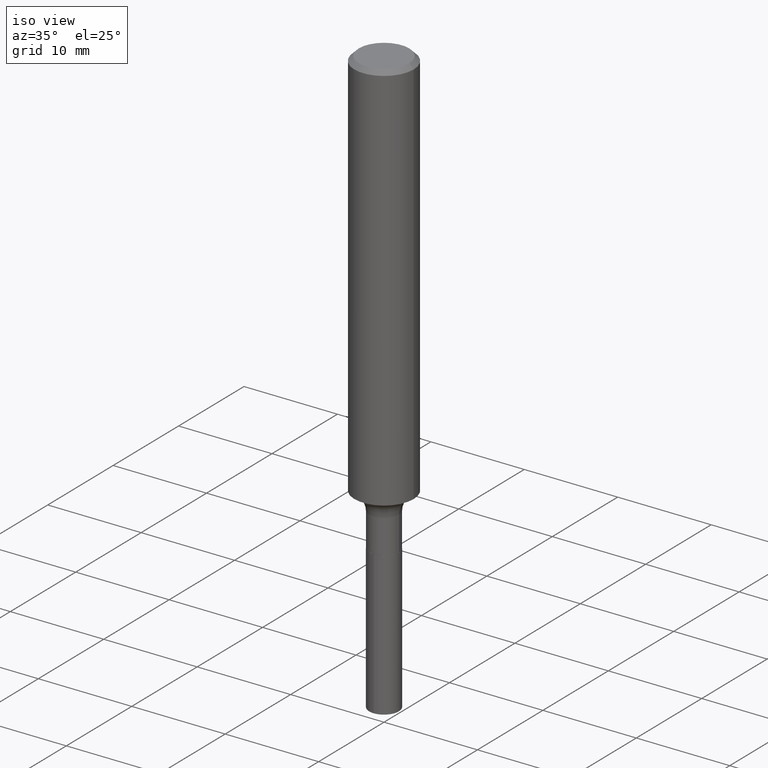
[diagram: clean part render]
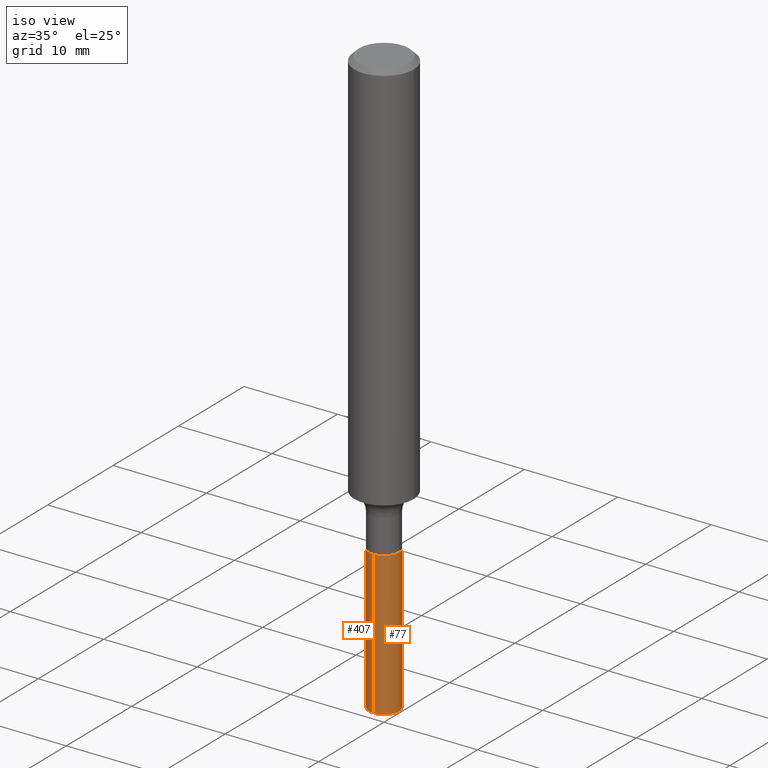
[diagram: same view with one multi-face feature highlighted, each face labeled with its STEP entity id]
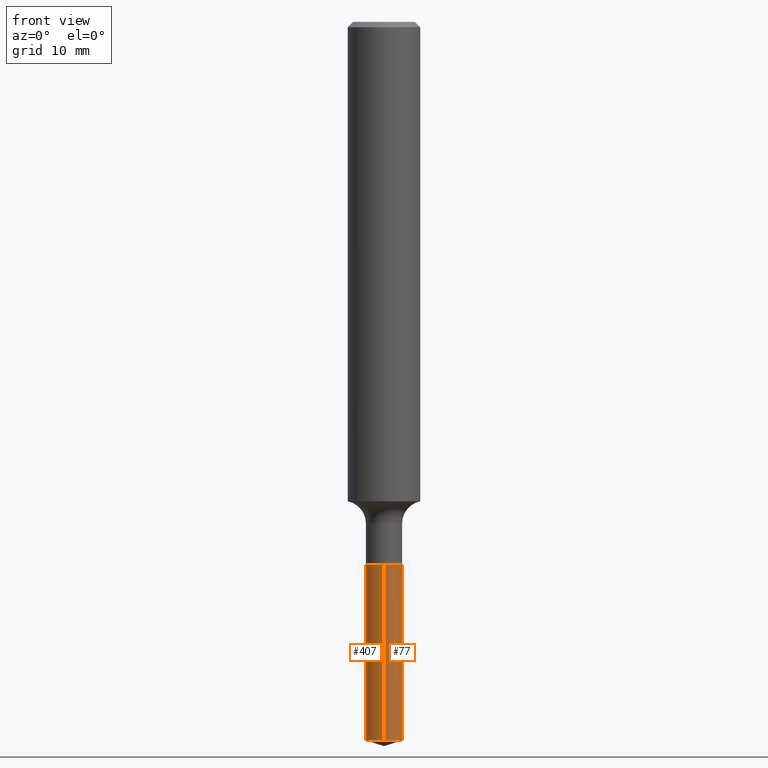
[diagram: same view with one multi-face feature highlighted, each face labeled with its STEP entity id]
A machine part, iso view. The highlighted faces form ONE feature: a constant-radius fillet chain: 2 tangent blend faces with common blend radius 1.5875 mm. The faces share edges in the B-rep.
A second angle (front view) of the same feature is appended — it is thin or edge-on in the first view.
Their STEP definitions:
[1] entity #407 (Cylinder):
#3 = DIRECTION ( 'NONE',  ( -2.446094705567647520E-29, 3.490585015303409213E-15, 1.000000000000000000 ) ) ;
#6 = AXIS2_PLACEMENT_3D ( 'NONE', #194, #340, #35 ) ;
#35 = DIRECTION ( 'NONE',  ( -6.982962677686265922E-15, -1.000000000000000000, 0.000000000000000000 ) ) ;
#49 = VERTEX_POINT ( 'NONE', #113 ) ;
#113 = CARTESIAN_POINT ( 'NONE',  ( -4.364351673553457676E-16, -0.06250000000000655032, -1.874999999999999778 ) ) ;
#141 = VECTOR ( 'NONE', #255, 39.37007874015748143 ) ;
#142 = DIRECTION ( 'NONE',  ( -2.446094705567647520E-29, 3.490585015303409213E-15, 1.000000000000000000 ) ) ;
#166 = ORIENTED_EDGE ( 'NONE', *, *, #389, .T. ) ;
#176 = CARTESIAN_POINT ( 'NONE',  ( 4.440892098501083701E-16, 0.06249999999999344968, -1.875000000000000444 ) ) ;
#181 = VERTEX_POINT ( 'NONE', #273 ) ;
#182 = DIRECTION ( 'NONE',  ( -2.446094705567647800E-29, 3.490585015303409213E-15, 1.000000000000000000 ) ) ;
#187 = DIRECTION ( 'NONE',  ( -6.982962677686265922E-15, -1.000000000000000000, 4.370956789862821150E-15 ) ) ;
#190 = EDGE_LOOP ( 'NONE', ( #463, #166, #199, #392 ) ) ;
#194 = CARTESIAN_POINT ( 'NONE',  ( 6.065860033942612795E-29, -8.659357068157762178E-15, -2.480293825695063958 ) ) ;
#199 = ORIENTED_EDGE ( 'NONE', *, *, #491, .T. ) ;
#223 = CARTESIAN_POINT ( 'NONE',  ( 4.440892098501233585E-16, 0.06249999999999345662, -1.875000000000000444 ) ) ;
#226 = CIRCLE ( 'NONE', #6, 0.06250000000000000000 ) ;
#247 = VERTEX_POINT ( 'NONE', #429 ) ;
#255 = DIRECTION ( 'NONE',  ( -2.446094705567647800E-29, 3.490585015303409213E-15, 1.000000000000000000 ) ) ;
#273 = CARTESIAN_POINT ( 'NONE',  ( 4.440892098501230626E-16, 0.06249999999999132638, -2.480293825695063958 ) ) ;
#288 = AXIS2_PLACEMENT_3D ( 'NONE', #345, #3, #187 ) ;
#292 = DIRECTION ( 'NONE',  ( -6.982962677686265922E-15, -1.000000000000000000, 4.370956789862821150E-15 ) ) ;
#294 = LINE ( 'NONE', #449, #441 ) ;
#296 = EDGE_CURVE ( 'NONE', #181, #484, #432, .T. ) ;
#304 = CYLINDRICAL_SURFACE ( 'NONE', #288, 0.06250000000000000000 ) ;
#318 = EDGE_CURVE ( 'NONE', #484, #49, #373, .T. ) ;
#340 = DIRECTION ( 'NONE',  ( -2.446094705567647520E-29, 3.490585015303409213E-15, 1.000000000000000000 ) ) ;
#345 = CARTESIAN_POINT ( 'NONE',  ( 4.585254011597131119E-29, -6.546527510330898707E-15, -1.875000000000000000 ) ) ;
#363 = CARTESIAN_POINT ( 'NONE',  ( 4.585254011597131119E-29, -6.546527510330898707E-15, -1.875000000000000000 ) ) ;
#373 = CIRCLE ( 'NONE', #411, 0.06250000000000000000 ) ;
#389 = EDGE_CURVE ( 'NONE', #181, #247, #226, .T. ) ;
#392 = ORIENTED_EDGE ( 'NONE', *, *, #318, .F. ) ;
#407 = ADVANCED_FACE ( 'NONE', ( #488 ), #304, .T. ) ;
#411 = AXIS2_PLACEMENT_3D ( 'NONE', #363, #142, #292 ) ;
#429 = CARTESIAN_POINT ( 'NONE',  ( -4.364351673553308285E-16, -0.06250000000000863198, -2.480293825695063958 ) ) ;
#432 = LINE ( 'NONE', #176, #141 ) ;
#441 = VECTOR ( 'NONE', #182, 39.37007874015748143 ) ;
#449 = CARTESIAN_POINT ( 'NONE',  ( -4.364351673553457676E-16, -0.06250000000000655032, -1.874999999999999778 ) ) ;
#463 = ORIENTED_EDGE ( 'NONE', *, *, #296, .F. ) ;
#484 = VERTEX_POINT ( 'NONE', #223 ) ;
#488 = FACE_OUTER_BOUND ( 'NONE', #190, .T. ) ;
#491 = EDGE_CURVE ( 'NONE', #247, #49, #294, .T. ) ;
[2] entity #77 (Cylinder):
#34 = EDGE_CURVE ( 'NONE', #247, #181, #48, .T. ) ;
#48 = CIRCLE ( 'NONE', #198, 0.06250000000000000000 ) ;
#49 = VERTEX_POINT ( 'NONE', #113 ) ;
#51 = CARTESIAN_POINT ( 'NONE',  ( 6.065860033942612795E-29, -8.659357068157762178E-15, -2.480293825695063958 ) ) ;
#73 = DIRECTION ( 'NONE',  ( -6.982962677686265922E-15, -1.000000000000000000, 4.370956789862821150E-15 ) ) ;
#77 = ADVANCED_FACE ( 'NONE', ( #143 ), #110, .T. ) ;
#80 = AXIS2_PLACEMENT_3D ( 'NONE', #225, #437, #369 ) ;
#95 = EDGE_CURVE ( 'NONE', #49, #484, #295, .T. ) ;
#110 = CYLINDRICAL_SURFACE ( 'NONE', #232, 0.06250000000000000000 ) ;
#113 = CARTESIAN_POINT ( 'NONE',  ( -4.364351673553457676E-16, -0.06250000000000655032, -1.874999999999999778 ) ) ;
#116 = CARTESIAN_POINT ( 'NONE',  ( 4.585254011597131119E-29, -6.546527510330898707E-15, -1.875000000000000000 ) ) ;
#128 = ORIENTED_EDGE ( 'NONE', *, *, #95, .F. ) ;
#141 = VECTOR ( 'NONE', #255, 39.37007874015748143 ) ;
#143 = FACE_OUTER_BOUND ( 'NONE', #159, .T. ) ;
#159 = EDGE_LOOP ( 'NONE', ( #229, #274, #128, #193 ) ) ;
#176 = CARTESIAN_POINT ( 'NONE',  ( 4.440892098501083701E-16, 0.06249999999999344968, -1.875000000000000444 ) ) ;
#178 = DIRECTION ( 'NONE',  ( -6.982962677686265922E-15, -1.000000000000000000, 0.000000000000000000 ) ) ;
#181 = VERTEX_POINT ( 'NONE', #273 ) ;
#182 = DIRECTION ( 'NONE',  ( -2.446094705567647800E-29, 3.490585015303409213E-15, 1.000000000000000000 ) ) ;
#193 = ORIENTED_EDGE ( 'NONE', *, *, #491, .F. ) ;
#198 = AXIS2_PLACEMENT_3D ( 'NONE', #51, #202, #178 ) ;
#202 = DIRECTION ( 'NONE',  ( -2.446094705567647520E-29, 3.490585015303409213E-15, 1.000000000000000000 ) ) ;
#223 = CARTESIAN_POINT ( 'NONE',  ( 4.440892098501233585E-16, 0.06249999999999345662, -1.875000000000000444 ) ) ;
#225 = CARTESIAN_POINT ( 'NONE',  ( 4.585254011597131119E-29, -6.546527510330898707E-15, -1.875000000000000000 ) ) ;
#229 = ORIENTED_EDGE ( 'NONE', *, *, #34, .T. ) ;
#232 = AXIS2_PLACEMENT_3D ( 'NONE', #116, #478, #73 ) ;
#247 = VERTEX_POINT ( 'NONE', #429 ) ;
#255 = DIRECTION ( 'NONE',  ( -2.446094705567647800E-29, 3.490585015303409213E-15, 1.000000000000000000 ) ) ;
#273 = CARTESIAN_POINT ( 'NONE',  ( 4.440892098501230626E-16, 0.06249999999999132638, -2.480293825695063958 ) ) ;
#274 = ORIENTED_EDGE ( 'NONE', *, *, #296, .T. ) ;
#294 = LINE ( 'NONE', #449, #441 ) ;
#295 = CIRCLE ( 'NONE', #80, 0.06250000000000000000 ) ;
#296 = EDGE_CURVE ( 'NONE', #181, #484, #432, .T. ) ;
#369 = DIRECTION ( 'NONE',  ( -6.982962677686265922E-15, -1.000000000000000000, 4.370956789862821150E-15 ) ) ;
#429 = CARTESIAN_POINT ( 'NONE',  ( -4.364351673553308285E-16, -0.06250000000000863198, -2.480293825695063958 ) ) ;
#432 = LINE ( 'NONE', #176, #141 ) ;
#437 = DIRECTION ( 'NONE',  ( -2.446094705567647520E-29, 3.490585015303409213E-15, 1.000000000000000000 ) ) ;
#441 = VECTOR ( 'NONE', #182, 39.37007874015748143 ) ;
#449 = CARTESIAN_POINT ( 'NONE',  ( -4.364351673553457676E-16, -0.06250000000000655032, -1.874999999999999778 ) ) ;
#478 = DIRECTION ( 'NONE',  ( -2.446094705567647520E-29, 3.490585015303409213E-15, 1.000000000000000000 ) ) ;
#484 = VERTEX_POINT ( 'NONE', #223 ) ;
#491 = EDGE_CURVE ( 'NONE', #247, #49, #294, .T. ) ;